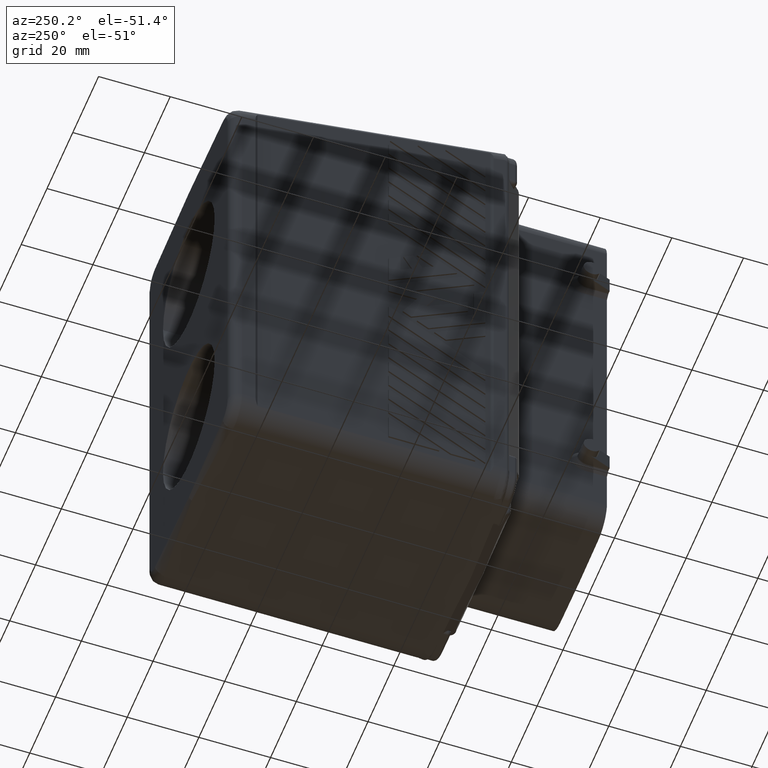
[diagram: clean part render]
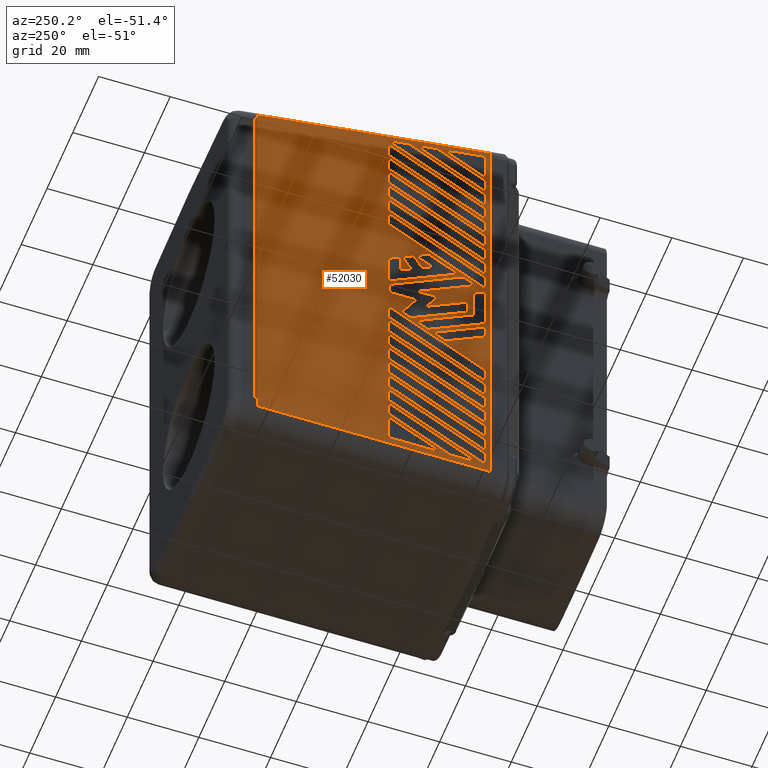
[diagram: same view with one face highlighted and labeled with its STEP entity id]
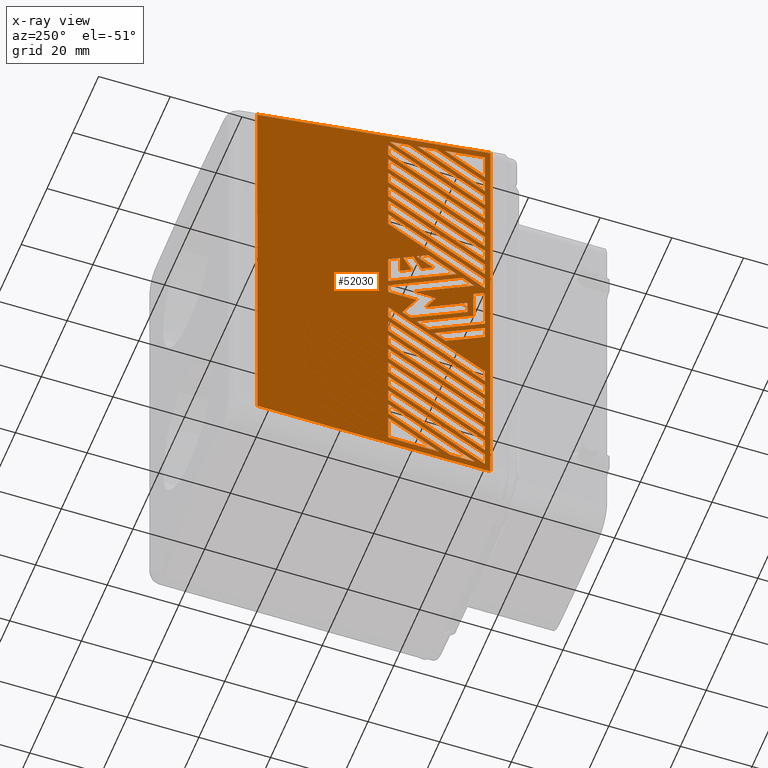
[diagram: x-ray of the same camera — body ghosted, the highlighted face saturated]
A machine part, auxiliary view. The second image highlights one B-rep face of the part: STEP entity #52030.
The next image is the same camera in x-ray: the body ghosted, the highlighted face saturated — about 0% of this face is hidden behind the body in this view.
In plain terms, the highlighted planar face has unit normal (-1, 0, 0).
Its self-contained STEP definition (entity closure, byte-faithful):
#100=CARTESIAN_POINT('',(14.1173127042266,57.7732326809806,
-56.8577996494301));
#110=VERTEX_POINT('',#100);
#280=CARTESIAN_POINT('',(14.1173127042267,57.7732326809806,
-52.908723808173));
#290=VERTEX_POINT('',#280);
#320=CARTESIAN_POINT('',(14.117312704229,57.7732326809805,0.));
#330=DIRECTION('',(4.22079630078353E-14,-2.14213244519121E-15,1.));
#340=VECTOR('',#330,1.);
#350=LINE('',#320,#340);
#360=EDGE_CURVE('',#110,#290,#350,.T.);
#1700=CARTESIAN_POINT('',(14.1173127042315,57.7732326809804,
60.4660871319278));
#1710=VERTEX_POINT('',#1700);
#1880=CARTESIAN_POINT('',(14.1173127042314,68.890920464603,
58.5057388125822));
#1890=VERTEX_POINT('',#1880);
#1920=CARTESIAN_POINT('',(14.117312704232,0.0868240888334704,
70.6377573868961));
#1930=DIRECTION('',(-7.32747196252603E-15,0.984807753012207,
-0.173648177666935));
#1940=VECTOR('',#1930,1.);
#1950=LINE('',#1920,#1940);
#1960=EDGE_CURVE('',#1710,#1890,#1950,.T.);
#2100=CARTESIAN_POINT('',(14.1173127042292,60.8461850785397,
5.24976613991842));
#2110=VERTEX_POINT('',#2100);
#2280=CARTESIAN_POINT('',(14.1173127042293,64.0861850785397,
7.12038101209279));
#2290=VERTEX_POINT('',#2280);
#2320=CARTESIAN_POINT('',(14.1173127042277,0.,-29.8797951943379));
#2330=DIRECTION('',(2.1094237467878E-14,0.86602540378444,
0.499999999999997));
#2340=VECTOR('',#2330,1.);
#2350=LINE('',#2320,#2340);
#2360=EDGE_CURVE('',#2110,#2290,#2350,.T.);
#3650=CARTESIAN_POINT('',(14.1173127042314,56.2866080000187,
63.0044849627656));
#3660=VERTEX_POINT('',#3650);
#3690=CARTESIAN_POINT('',(14.1173127042314,9.92637083796305,
71.1790456064792));
#3700=DIRECTION('',(0.,0.984807753012208,-0.173648177666931));
#3710=VECTOR('',#3700,1.);
#3720=LINE('',#3690,#3710);
#3730=CARTESIAN_POINT('',(14.1173127042314,121.261829476368,
51.5476003389771));
#3740=VERTEX_POINT('',#3730);
#3750=EDGE_CURVE('',#3660,#3740,#3720,.T.);
#5400=CARTESIAN_POINT('',(14.1173127042265,57.7732326809806,
-58.7284145216045));
#5410=VERTEX_POINT('',#5400);
#5580=CARTESIAN_POINT('',(14.1173127042271,84.7732326809809,
-43.1399572534843));
#5590=VERTEX_POINT('',#5580);
#5620=CARTESIAN_POINT('',(14.1173127042251,0.,-92.0838059619238));
#5630=DIRECTION('',(2.1094237467878E-14,0.866025403784437,
0.500000000000003));
#5640=VECTOR('',#5630,1.);
#5650=LINE('',#5620,#5640);
#5660=EDGE_CURVE('',#5410,#5590,#5650,.T.);
#5820=CARTESIAN_POINT('',(14.1173127042313,84.3343764378816,
55.7826408491097));
#5830=VERTEX_POINT('',#5820);
#5980=CARTESIAN_POINT('',(14.1173127042307,57.7732326809807,
40.4475573510787));
#5990=VERTEX_POINT('',#5980);
#6020=CARTESIAN_POINT('',(14.1173127042293,0.,7.09216591075971));
#6030=DIRECTION('',(-2.1094237467878E-14,-0.866025403784439,
-0.499999999999999));
#6040=VECTOR('',#6030,1.);
#6050=LINE('',#6020,#6040);
#6060=EDGE_CURVE('',#5830,#5990,#6050,.T.);
#6200=CARTESIAN_POINT('',(14.1173127042308,84.7732326809809,
42.5260183201615));
#6210=VERTEX_POINT('',#6200);
#6380=CARTESIAN_POINT('',(14.1173127042306,84.7732326809808,
38.5769424789044));
#6390=VERTEX_POINT('',#6380);
#6420=CARTESIAN_POINT('',(14.117312704229,84.7732326809807,0.));
#6430=DIRECTION('',(-4.22079630078353E-14,-4.49714925095434E-15,-1.));
#6440=VECTOR('',#6430,1.);
#6450=LINE('',#6420,#6440);
#6460=EDGE_CURVE('',#6210,#6390,#6450,.T.);
#6600=CARTESIAN_POINT('',(14.1173127042301,57.7732326809805,
26.9375610520413));
#6610=VERTEX_POINT('',#6600);
#6730=CARTESIAN_POINT('',(14.1173127042287,0.,-6.41783038827796));
#6740=DIRECTION('',(2.1094237467878E-14,0.866025403784437,
0.500000000000003));
#6750=VECTOR('',#6740,1.);
#6760=LINE('',#6730,#6750);
#6770=EDGE_CURVE('',#6610,#6210,#6760,.T.);
#6910=CARTESIAN_POINT('',(14.1173127042299,57.7732326809805,
22.9884852107843));
#6920=VERTEX_POINT('',#6910);
#7040=CARTESIAN_POINT('',(14.117312704229,57.7732326809805,0.));
#7050=DIRECTION('',(4.22079630078353E-14,-2.14213244519121E-15,1.));
#7060=VECTOR('',#7050,1.);
#7070=LINE('',#7040,#7060);
#7080=EDGE_CURVE('',#6920,#6610,#7070,.T.);
#7220=CARTESIAN_POINT('',(14.1173127042266,84.773232680981,
-54.7793386803471));
#7230=VERTEX_POINT('',#7220);
#7400=CARTESIAN_POINT('',(14.1173127042265,84.773232680981,
-58.7284145216042));
#7410=VERTEX_POINT('',#7400);
#7440=CARTESIAN_POINT('',(14.117312704229,84.773232680981,0.));
#7450=DIRECTION('',(-4.22079630078353E-14,0.,-1.));
#7460=VECTOR('',#7450,1.);
#7470=LINE('',#7440,#7460);
#7480=EDGE_CURVE('',#7230,#7410,#7470,.T.);
#7620=CARTESIAN_POINT('',(14.1173127042293,65.7061850785394,
8.05568844817983));
#7630=VERTEX_POINT('',#7620);
#7800=CARTESIAN_POINT('',(14.1173127042295,73.6261850785396,
12.6283025801618));
#7810=VERTEX_POINT('',#7800);
#7840=CARTESIAN_POINT('',(14.1173127042277,0.,-29.8797951943381));
#7850=DIRECTION('',(2.1094237467878E-14,0.866025403784439,
0.499999999999999));
#7860=VECTOR('',#7850,1.);
#7870=LINE('',#7840,#7860);
#7880=EDGE_CURVE('',#7630,#7810,#7870,.T.);
#9370=CARTESIAN_POINT('',(14.1173127042288,84.7861850785395,
-2.96015468795786));
#9380=VERTEX_POINT('',#9370);
#9500=CARTESIAN_POINT('',(14.1173127042309,0.,45.9911720906965));
#9510=DIRECTION('',(2.1094237467878E-14,-0.866025403784447,
0.499999999999986));
#9520=VECTOR('',#9510,1.);
#9530=LINE('',#9500,#9520);
#9540=EDGE_CURVE('',#9380,#7630,#9530,.T.);
#9680=CARTESIAN_POINT('',(14.1173127042293,81.5461850785397,
8.05568844817922));
#9690=VERTEX_POINT('',#9680);
#9860=CARTESIAN_POINT('',(14.1173127042292,84.7861850785394,
6.1850735760047));
#9870=VERTEX_POINT('',#9860);
#9900=CARTESIAN_POINT('',(14.1173127042313,0.,55.1364003546681));
#9910=DIRECTION('',(-2.1094237467878E-14,0.866025403784407,
-0.500000000000055));
#9920=VECTOR('',#9910,1.);
#9930=LINE('',#9900,#9920);
#9940=EDGE_CURVE('',#9690,#9870,#9930,.T.);
#10080=CARTESIAN_POINT('',(14.1173127042286,61.0261850785397,
-7.53276881994002));
#10090=VERTEX_POINT('',#10080);
#10260=CARTESIAN_POINT('',(14.1173127042283,76.8661850785397,
-16.6779970839038));
#10270=VERTEX_POINT('',#10260);
#10300=CARTESIAN_POINT('',(14.1173127042301,0.,27.7007155627714));
#10310=DIRECTION('',(-2.1094237467878E-14,0.866025403784435,
-0.500000000000006));
#10320=VECTOR('',#10310,1.);
#10330=LINE('',#10300,#10320);
#10340=EDGE_CURVE('',#10090,#10270,#10330,.T.);
#10520=CARTESIAN_POINT('',(14.117312704229,84.7861850785394,0.));
#10530=DIRECTION('',(-4.22079630078353E-14,3.88578058618805E-15,-1.));
#10540=VECTOR('',#10530,1.);
#10550=LINE('',#10520,#10540);
#10560=EDGE_CURVE('',#9870,#9380,#10550,.T.);
#10700=CARTESIAN_POINT('',(14.1173127042288,71.2861850785397,
-4.31115431786188));
#10710=VERTEX_POINT('',#10700);
#10790=CARTESIAN_POINT('',(14.1173127042288,77.4061850785399,
-4.31115431786187));
#10800=VERTEX_POINT('',#10790);
#10830=CARTESIAN_POINT('',(14.1173127042288,0.,-4.31115431786213));
#10840=DIRECTION('',(1.49883571991992E-28,1.,3.5527136788005E-15));
#10850=VECTOR('',#10840,1.);
#10860=LINE('',#10830,#10850);
#10870=EDGE_CURVE('',#10710,#10800,#10860,.T.);
#11010=CARTESIAN_POINT('',(14.1173127042293,80.6091462326702,
8.59668807808321));
#11020=VERTEX_POINT('',#11010);
#11190=CARTESIAN_POINT('',(14.1173127042292,78.2691462326702,
4.54368918837233));
#11200=VERTEX_POINT('',#11190);
#11230=CARTESIAN_POINT('',(14.117312704229,75.6458460566494,0.));
#11240=DIRECTION('',(-3.65540930857833E-14,-0.500000000000012,
-0.866025403784432));
#11250=VECTOR('',#11240,1.);
#11260=LINE('',#11230,#11250);
#11270=EDGE_CURVE('',#11020,#11200,#11260,.T.);
#11410=CARTESIAN_POINT('',(14.1173127042286,74.3461850785398,
-9.61122978902285));
#11420=VERTEX_POINT('',#11410);
#11470=CARTESIAN_POINT('',(14.117312704229,68.7971389726041,0.));
#11480=DIRECTION('',(3.65263375101677E-14,-0.500000000000001,
0.866025403784438));
#11490=VECTOR('',#11480,1.);
#11500=LINE('',#11470,#11490);
#11510=EDGE_CURVE('',#11420,#10710,#11500,.T.);
#11650=CARTESIAN_POINT('',(14.1173127042284,80.8421073868013,
-14.3824972689519));
#11660=VERTEX_POINT('',#11650);
#11740=CARTESIAN_POINT('',(14.1173127042283,78.4861850785398,
-15.7426896478165));
#11750=VERTEX_POINT('',#11740);
#11780=CARTESIAN_POINT('',(14.1173127042264,0.,-61.0567097305789));
#11790=DIRECTION('',(-2.1094237467878E-14,-0.866025403784436,
-0.500000000000005));
#11800=VECTOR('',#11790,1.);
#11810=LINE('',#11780,#11800);
#11820=EDGE_CURVE('',#11660,#11750,#11810,.T.);
#11980=CARTESIAN_POINT('',(14.1173127042287,62.6461850785396,
-6.59746138385298));
#11990=VERTEX_POINT('',#11980);
#12020=CARTESIAN_POINT('',(14.1173127042302,0.,29.5713304349441));
#12030=DIRECTION('',(2.1094237467878E-14,-0.866025403784444,
0.499999999999991));
#12040=VECTOR('',#12030,1.);
#12050=LINE('',#12020,#12040);
#12060=EDGE_CURVE('',#11750,#11990,#12050,.T.);
#12620=CARTESIAN_POINT('',(14.1173127042288,62.6461850785397,
-2.85623163950416));
#12630=VERTEX_POINT('',#12620);
#12660=CARTESIAN_POINT('',(14.117312704229,62.6461850785398,0.));
#12670=DIRECTION('',(4.22079630078353E-14,2.86992651865603E-14,1.));
#12680=VECTOR('',#12670,1.);
#12690=LINE('',#12660,#12680);
#12700=EDGE_CURVE('',#11990,#12630,#12690,.T.);
#13240=CARTESIAN_POINT('',(14.1173127042308,84.7732326809808,
44.3966331923358));
#13250=VERTEX_POINT('',#13240);
#13420=CARTESIAN_POINT('',(14.1173127042302,57.7732326809805,
28.8081759242156));
#13430=VERTEX_POINT('',#13420);
#13460=CARTESIAN_POINT('',(14.1173127042288,0.,-4.54721551610356));
#13470=DIRECTION('',(-2.1094237467878E-14,-0.866025403784437,
-0.500000000000003));
#13480=VECTOR('',#13470,1.);
#13490=LINE('',#13460,#13480);
#13500=EDGE_CURVE('',#13250,#13430,#13490,.T.);
#15170=CARTESIAN_POINT('',(14.1173127042294,57.7732326809805,
11.3491037839214));
#15180=VERTEX_POINT('',#15170);
#15350=CARTESIAN_POINT('',(14.1173127042296,57.7732326809805,
15.2981796251784));
#15360=VERTEX_POINT('',#15350);
#15390=CARTESIAN_POINT('',(14.117312704229,57.7732326809805,0.));
#15400=DIRECTION('',(4.22079630078353E-14,-2.14213244519121E-15,1.));
#15410=VECTOR('',#15400,1.);
#15420=LINE('',#15390,#15410);
#15430=EDGE_CURVE('',#15180,#15360,#15420,.T.);
#15660=CARTESIAN_POINT('',(14.1173127042261,67.4202199790885,
-68.7471810762928));
#15670=VERTEX_POINT('',#15660);
#15700=CARTESIAN_POINT('',(14.1173127042244,0.,-107.672263230044));
#15710=DIRECTION('',(-2.1094237467878E-14,-0.866025403784437,
-0.500000000000002));
#15720=VECTOR('',#15710,1.);
#15730=LINE('',#15700,#15720);
#15740=EDGE_CURVE('',#7410,#15670,#15730,.T.);
#15970=CARTESIAN_POINT('',(14.1173127042303,57.7732326809805,
32.7572517654727));
#15980=VERTEX_POINT('',#15970);
#16010=CARTESIAN_POINT('',(14.117312704229,57.7732326809805,0.));
#16020=DIRECTION('',(4.22079630078353E-14,-2.14213244519121E-15,1.));
#16030=VECTOR('',#16020,1.);
#16040=LINE('',#16010,#16030);
#16050=EDGE_CURVE('',#13430,#15980,#16040,.T.);
#16870=CARTESIAN_POINT('',(14.1173127042262,57.7732326809807,
-64.5481052350358));
#16880=VERTEX_POINT('',#16870);
#17050=CARTESIAN_POINT('',(14.1173127042269,84.7732326809811,
-48.9596479669156));
#17060=VERTEX_POINT('',#17050);
#17090=CARTESIAN_POINT('',(14.1173127042248,0.,-97.9034966753551));
#17100=DIRECTION('',(2.1094237467878E-14,0.866025403784438,
0.500000000000002));
#17110=VECTOR('',#17100,1.);
#17120=LINE('',#17090,#17110);
#17130=EDGE_CURVE('',#16880,#17060,#17120,.T.);
#17270=CARTESIAN_POINT('',(14.1173127042297,57.7732326809805,
17.1687944973528));
#17280=VERTEX_POINT('',#17270);
#17450=CARTESIAN_POINT('',(14.1173127042299,57.7732326809804,
21.1178703386099));
#17460=VERTEX_POINT('',#17450);
#17490=CARTESIAN_POINT('',(14.117312704229,57.7732326809805,0.));
#17500=DIRECTION('',(4.22079630078353E-14,-2.14213244519121E-15,1.));
#17510=VECTOR('',#17500,1.);
#17520=LINE('',#17490,#17510);
#17530=EDGE_CURVE('',#17280,#17460,#17520,.T.);
#17930=CARTESIAN_POINT('',(14.1173127042261,60.5802199790886,
-68.7471810762928));
#17940=VERTEX_POINT('',#17930);
#17970=CARTESIAN_POINT('',(14.1173127042261,0.,-68.7471810762928));
#17980=DIRECTION('',(-4.97968446420764E-30,-1.,-1.17961196366423E-16));
#17990=VECTOR('',#17980,1.);
#18000=LINE('',#17970,#17990);
#18010=EDGE_CURVE('',#15670,#17940,#18000,.T.);
#18150=CARTESIAN_POINT('',(14.1173127042304,57.7732326809805,
34.6278666376472));
#18160=VERTEX_POINT('',#18150);
#18330=CARTESIAN_POINT('',(14.1173127042306,57.7732326809805,
38.5769424789042));
#18340=VERTEX_POINT('',#18330);
#18370=CARTESIAN_POINT('',(14.117312704229,57.7732326809806,0.));
#18380=DIRECTION('',(4.22079630078353E-14,-2.14213244519121E-15,1.));
#18390=VECTOR('',#18380,1.);
#18400=LINE('',#18370,#18390);
#18410=EDGE_CURVE('',#18160,#18340,#18400,.T.);
#26110=CARTESIAN_POINT('',(14.1173127042267,84.773232680981,
-52.9087238081727));
#26120=VERTEX_POINT('',#26110);
#26150=CARTESIAN_POINT('',(14.117312704229,84.773232680981,0.));
#26160=DIRECTION('',(-4.22079630078353E-14,0.,-1.));
#26170=VECTOR('',#26160,1.);
#26180=LINE('',#26150,#26170);
#26190=EDGE_CURVE('',#17060,#26120,#26180,.T.);
#31220=CARTESIAN_POINT('',(14.117312704227,84.7732326809809,
-47.0890330947413));
#31230=VERTEX_POINT('',#31220);
#31400=CARTESIAN_POINT('',(14.1173127042263,57.7732326809806,
-62.6774903628615));
#31410=VERTEX_POINT('',#31400);
#31440=CARTESIAN_POINT('',(14.1173127042249,0.,-96.0328818031808));
#31450=DIRECTION('',(-2.1094237467878E-14,-0.866025403784437,
-0.500000000000003));
#31460=VECTOR('',#31450,1.);
#31470=LINE('',#31440,#31460);
#31480=EDGE_CURVE('',#31230,#31410,#31470,.T.);
#35550=CARTESIAN_POINT('',(14.1173127042305,84.7732326809808,
36.7063276067301));
#35560=VERTEX_POINT('',#35550);
#35730=CARTESIAN_POINT('',(14.1173127042303,84.7732326809808,
32.757251765473));
#35740=VERTEX_POINT('',#35730);
#35770=CARTESIAN_POINT('',(14.117312704229,84.7732326809808,0.));
#35780=DIRECTION('',(-4.22079630078353E-14,0.,-1.));
#35790=VECTOR('',#35780,1.);
#35800=LINE('',#35770,#35790);
#35810=EDGE_CURVE('',#35560,#35740,#35800,.T.);
#35970=CARTESIAN_POINT('',(14.117312704226,121.261829476397,
-71.0025593763446));
#35980=VERTEX_POINT('',#35970);
#36010=CARTESIAN_POINT('',(14.117312704226,-1.49373060649877E-13,
-71.0025593763446));
#36020=DIRECTION('',(1.24492111605191E-30,1.,-6.12323399573677E-17));
#36030=VECTOR('',#36020,1.);
#36040=LINE('',#36010,#36030);
#36050=CARTESIAN_POINT('',(14.117312704226,56.2866079999979,
-71.0025593763446));
#36060=VERTEX_POINT('',#36050);
#36070=EDGE_CURVE('',#36060,#35980,#36040,.T.);
#36760=CARTESIAN_POINT('',(14.1173127042282,84.7732326809807,
-17.9905795275844));
#36770=VERTEX_POINT('',#36760);
#36940=CARTESIAN_POINT('',(14.1173127042275,57.7732326809806,
-33.5790367957043));
#36950=VERTEX_POINT('',#36940);
#36980=CARTESIAN_POINT('',(14.1173127042261,0.,-66.9344282360235));
#36990=DIRECTION('',(-2.1094237467878E-14,-0.866025403784438,
-0.500000000000001));
#37000=VECTOR('',#36990,1.);
#37010=LINE('',#36980,#37000);
#37020=EDGE_CURVE('',#36770,#36950,#37010,.T.);
#37600=CARTESIAN_POINT('',(14.1173127042285,0.,-10.3669062295349));
#37610=DIRECTION('',(-2.1094237467878E-14,-0.866025403784437,
-0.500000000000003));
#37620=VECTOR('',#37610,1.);
#37630=LINE('',#37600,#37620);
#37640=EDGE_CURVE('',#6390,#6920,#37630,.T.);
#37730=CARTESIAN_POINT('',(14.1173127042314,79.0946324469476,
56.7065490867165));
#37740=VERTEX_POINT('',#37730);
#37860=CARTESIAN_POINT('',(14.1173127042319,0.,70.6530668163329));
#37870=DIRECTION('',(-7.32747196252603E-15,0.984807753012207,
-0.173648177666935));
#37880=VECTOR('',#37870,1.);
#37890=LINE('',#37860,#37880);
#37900=EDGE_CURVE('',#37740,#5830,#37890,.T.);
#38130=CARTESIAN_POINT('',(14.1173127042308,57.7732326809805,
44.3966331923357));
#38140=VERTEX_POINT('',#38130);
#38170=CARTESIAN_POINT('',(14.117312704229,57.7732326809806,0.));
#38180=DIRECTION('',(4.22079630078353E-14,-2.14213244519121E-15,1.));
#38190=VECTOR('',#38180,1.);
#38200=LINE('',#38170,#38190);
#38210=EDGE_CURVE('',#5990,#38140,#38200,.T.);
#38610=CARTESIAN_POINT('',(14.1173127042277,57.7732326809806,
-29.6299609544473));
#38620=VERTEX_POINT('',#38610);
#38650=CARTESIAN_POINT('',(14.117312704229,57.7732326809805,0.));
#38660=DIRECTION('',(4.22079630078353E-14,-2.14213244519121E-15,1.));
#38670=VECTOR('',#38660,1.);
#38680=LINE('',#38650,#38670);
#38690=EDGE_CURVE('',#36950,#38620,#38680,.T.);
#39040=CARTESIAN_POINT('',(14.117312704229,57.7732326809805,0.));
#39050=DIRECTION('',(4.22079630078353E-14,-2.14213244519121E-15,1.));
#39060=VECTOR('',#39050,1.);
#39070=LINE('',#39040,#39060);
#39080=EDGE_CURVE('',#31410,#5410,#39070,.T.);
#39220=CARTESIAN_POINT('',(14.1173127042284,84.7732326809807,
-14.0415036863273));
#39230=VERTEX_POINT('',#39220);
#39350=CARTESIAN_POINT('',(14.117312704229,84.7732326809807,0.));
#39360=DIRECTION('',(-4.22079630078353E-14,-4.49714925095434E-15,-1.));
#39370=VECTOR('',#39360,1.);
#39380=LINE('',#39350,#39370);
#39390=EDGE_CURVE('',#39230,#36770,#39380,.T.);
#39570=CARTESIAN_POINT('',(14.1173127042263,0.,-62.9853523947663));
#39580=DIRECTION('',(2.1094237467878E-14,0.866025403784439,0.5));
#39590=VECTOR('',#39580,1.);
#39600=LINE('',#39570,#39590);
#39610=EDGE_CURVE('',#38620,#39230,#39600,.T.);
#39860=CARTESIAN_POINT('',(14.1173127042294,0.,11.0412417520164));
#39870=DIRECTION('',(2.1094237467878E-14,0.866025403784437,
0.500000000000003));
#39880=VECTOR('',#39870,1.);
#39890=LINE('',#39860,#39880);
#39900=EDGE_CURVE('',#38140,#37740,#39890,.T.);
#40040=CARTESIAN_POINT('',(14.1173127042264,84.773232680981,
-60.5990293937786));
#40050=VERTEX_POINT('',#40040);
#40220=CARTESIAN_POINT('',(14.1173127042261,84.773232680981,
-68.7471810762928));
#40230=VERTEX_POINT('',#40220);
#40260=CARTESIAN_POINT('',(14.117312704229,84.773232680981,0.));
#40270=DIRECTION('',(-4.22079630078353E-14,0.,-1.));
#40280=VECTOR('',#40270,1.);
#40290=LINE('',#40260,#40280);
#40300=EDGE_CURVE('',#40050,#40230,#40290,.T.);
#42190=CARTESIAN_POINT('',(14.1173127042279,84.7732326809806,
-25.68088511319));
#42200=VERTEX_POINT('',#42190);
#42280=CARTESIAN_POINT('',(14.1173127042277,84.7732326809806,
-29.6299609544471));
#42290=VERTEX_POINT('',#42280);
#42320=CARTESIAN_POINT('',(14.117312704229,84.7732326809807,0.));
#42330=DIRECTION('',(-4.22079630078353E-14,-4.49714925095434E-15,-1.));
#42340=VECTOR('',#42330,1.);
#42350=LINE('',#42320,#42340);
#42360=EDGE_CURVE('',#42200,#42290,#42350,.T.);
#42590=CARTESIAN_POINT('',(14.117312704231,84.7732326809809,
48.3457090335929));
#42600=VERTEX_POINT('',#42590);
#42630=CARTESIAN_POINT('',(14.1173127042289,0.,-0.598139674846524));
#42640=DIRECTION('',(2.1094237467878E-14,0.866025403784437,
0.500000000000003));
#42650=VECTOR('',#42640,1.);
#42660=LINE('',#42630,#42650);
#42670=EDGE_CURVE('',#15980,#42600,#42660,.T.);
#46430=CARTESIAN_POINT('',(14.1173127042288,57.8773798754231,
-3.99903720678144));
#46440=DIRECTION('',(-1.,0.,4.22079630078353E-14));
#46450=DIRECTION('',(4.22079630078353E-14,-8.32667268468867E-17,1.));
#46460=AXIS2_PLACEMENT_3D('',#46430,#46440,#46450);
#46470=PLANE('',#46460);
#46480=CARTESIAN_POINT('',(14.117312704229,84.7732326809811,0.));
#46490=DIRECTION('',(-4.22079630078353E-14,-4.49714925095434E-15,-1.));
#46500=VECTOR('',#46490,1.);
#46510=LINE('',#46480,#46500);
#46520=CARTESIAN_POINT('',(14.1173127042276,84.7732326809806,
-31.5005758266216));
#46530=VERTEX_POINT('',#46520);
#46540=CARTESIAN_POINT('',(14.1173127042275,84.7732326809809,
-35.4496516678785));
#46550=VERTEX_POINT('',#46540);
#46560=EDGE_CURVE('',#46530,#46550,#46510,.T.);
#46570=ORIENTED_EDGE('',*,*,#46560,.F.);
#46580=CARTESIAN_POINT('',(14.1173127042254,0.,-84.3935003763179));
#46590=DIRECTION('',(-2.1094237467878E-14,-0.866025403784437,
-0.500000000000003));
#46600=VECTOR('',#46590,1.);
#46610=LINE('',#46580,#46600);
#46620=CARTESIAN_POINT('',(14.1173127042268,57.7732326809806,
-51.0381089359986));
#46630=VERTEX_POINT('',#46620);
#46640=EDGE_CURVE('',#46550,#46630,#46610,.T.);
#46650=ORIENTED_EDGE('',*,*,#46640,.F.);
#46660=CARTESIAN_POINT('',(14.117312704229,57.7732326809805,0.));
#46670=DIRECTION('',(4.22079630078353E-14,-2.14213244519121E-15,1.));
#46680=VECTOR('',#46670,1.);
#46690=LINE('',#46660,#46680);
#46700=CARTESIAN_POINT('',(14.117312704227,57.7732326809806,
-47.0890330947416));
#46710=VERTEX_POINT('',#46700);
#46720=EDGE_CURVE('',#46630,#46710,#46690,.T.);
#46730=ORIENTED_EDGE('',*,*,#46720,.F.);
#46740=CARTESIAN_POINT('',(14.1173127042256,0.,-80.4444245350609));
#46750=DIRECTION('',(2.1094237467878E-14,0.866025403784437,
0.500000000000003));
#46760=VECTOR('',#46750,1.);
#46770=LINE('',#46740,#46760);
#46780=EDGE_CURVE('',#46710,#46530,#46770,.T.);
#46790=ORIENTED_EDGE('',*,*,#46780,.F.);
#46800=EDGE_LOOP('',(#46790,#46730,#46650,#46570));
#46810=FACE_BOUND('',#46800,.T.);
#46820=ORIENTED_EDGE('',*,*,#39900,.F.);
#46830=ORIENTED_EDGE('',*,*,#37900,.F.);
#46840=ORIENTED_EDGE('',*,*,#6060,.F.);
#46850=ORIENTED_EDGE('',*,*,#38210,.F.);
#46860=EDGE_LOOP('',(#46850,#46840,#46830,#46820));
#46870=FACE_BOUND('',#46860,.T.);
#46880=ORIENTED_EDGE('',*,*,#35810,.F.);
#46890=CARTESIAN_POINT('',(14.1173127042283,0.,-16.1865969429664));
#46900=DIRECTION('',(-2.1094237467878E-14,-0.866025403784437,
-0.500000000000003));
#46910=VECTOR('',#46900,1.);
#46920=LINE('',#46890,#46910);
#46930=EDGE_CURVE('',#35740,#17280,#46920,.T.);
#46940=ORIENTED_EDGE('',*,*,#46930,.F.);
#46950=ORIENTED_EDGE('',*,*,#17530,.F.);
#46960=CARTESIAN_POINT('',(14.1173127042284,0.,-12.2375211017092));
#46970=DIRECTION('',(2.1094237467878E-14,0.866025403784438,
0.500000000000002));
#46980=VECTOR('',#46970,1.);
#46990=LINE('',#46960,#46980);
#47000=EDGE_CURVE('',#17460,#35560,#46990,.T.);
#47010=ORIENTED_EDGE('',*,*,#47000,.F.);
#47020=EDGE_LOOP('',(#47010,#46950,#46940,#46880));
#47030=FACE_BOUND('',#47020,.T.);
#47040=ORIENTED_EDGE('',*,*,#16050,.F.);
#47050=ORIENTED_EDGE('',*,*,#42670,.F.);
#47060=CARTESIAN_POINT('',(14.117312704229,84.7732326809806,0.));
#47070=DIRECTION('',(-4.22079630078353E-14,-4.49714925095434E-15,-1.));
#47080=VECTOR('',#47070,1.);
#47090=LINE('',#47060,#47080);
#47100=EDGE_CURVE('',#42600,#13250,#47090,.T.);
#47110=ORIENTED_EDGE('',*,*,#47100,.F.);
#47120=ORIENTED_EDGE('',*,*,#13500,.F.);
#47130=EDGE_LOOP('',(#47120,#47110,#47050,#47040));
#47140=FACE_BOUND('',#47130,.T.);
#47150=CARTESIAN_POINT('',(14.1173127042319,0.,70.6530668163329));
#47160=DIRECTION('',(-7.32747196252603E-15,0.984807753012207,
-0.173648177666935));
#47170=VECTOR('',#47160,1.);
#47180=LINE('',#47150,#47170);
#47190=CARTESIAN_POINT('',(14.1173127042314,71.3729044603085,
58.0680980684527));
#47200=VERTEX_POINT('',#47190);
#47210=CARTESIAN_POINT('',(14.1173127042314,76.6126484512424,
57.1441898308459));
#47220=VERTEX_POINT('',#47210);
#47230=EDGE_CURVE('',#47200,#47220,#47180,.T.);
#47240=ORIENTED_EDGE('',*,*,#47230,.F.);
#47250=CARTESIAN_POINT('',(14.1173127042295,0.,12.9118566241911));
#47260=DIRECTION('',(-2.1094237467878E-14,-0.866025403784439,
-0.499999999999999));
#47270=VECTOR('',#47260,1.);
#47280=LINE('',#47250,#47270);
#47290=CARTESIAN_POINT('',(14.1173127042309,57.7732326809805,
46.26724806451));
#47300=VERTEX_POINT('',#47290);
#47310=EDGE_CURVE('',#47220,#47300,#47280,.T.);
#47320=ORIENTED_EDGE('',*,*,#47310,.F.);
#47330=CARTESIAN_POINT('',(14.117312704229,57.7732326809806,0.));
#47340=DIRECTION('',(4.22079630078353E-14,-2.14213244519121E-15,1.));
#47350=VECTOR('',#47340,1.);
#47360=LINE('',#47330,#47350);
#47370=CARTESIAN_POINT('',(14.1173127042311,57.7732326809805,
50.2163239057671));
#47380=VERTEX_POINT('',#47370);
#47390=EDGE_CURVE('',#47300,#47380,#47360,.T.);
#47400=ORIENTED_EDGE('',*,*,#47390,.F.);
#47410=CARTESIAN_POINT('',(14.1173127042297,0.,16.8609324654479));
#47420=DIRECTION('',(2.1094237467878E-14,0.866025403784438,
0.500000000000002));
#47430=VECTOR('',#47420,1.);
#47440=LINE('',#47410,#47430);
#47450=EDGE_CURVE('',#47380,#47200,#47440,.T.);
#47460=ORIENTED_EDGE('',*,*,#47450,.F.);
#47470=EDGE_LOOP('',(#47460,#47400,#47320,#47240));
#47480=FACE_BOUND('',#47470,.T.);
#47490=ORIENTED_EDGE('',*,*,#39080,.F.);
#47500=ORIENTED_EDGE('',*,*,#5660,.F.);
#47510=CARTESIAN_POINT('',(14.117312704229,84.7732326809809,0.));
#47520=DIRECTION('',(-4.22079630078353E-14,0.,-1.));
#47530=VECTOR('',#47520,1.);
#47540=LINE('',#47510,#47530);
#47550=EDGE_CURVE('',#5590,#31230,#47540,.T.);
#47560=ORIENTED_EDGE('',*,*,#47550,.F.);
#47570=ORIENTED_EDGE('',*,*,#31480,.F.);
#47580=EDGE_LOOP('',(#47570,#47560,#47500,#47490));
#47590=FACE_BOUND('',#47580,.T.);
#47600=ORIENTED_EDGE('',*,*,#39390,.F.);
#47610=ORIENTED_EDGE('',*,*,#37020,.F.);
#47620=ORIENTED_EDGE('',*,*,#38690,.F.);
#47630=ORIENTED_EDGE('',*,*,#39610,.F.);
#47640=EDGE_LOOP('',(#47630,#47620,#47610,#47600));
#47650=FACE_BOUND('',#47640,.T.);
#47660=ORIENTED_EDGE('',*,*,#6460,.F.);
#47670=ORIENTED_EDGE('',*,*,#37640,.F.);
#47680=ORIENTED_EDGE('',*,*,#7080,.F.);
#47690=ORIENTED_EDGE('',*,*,#6770,.F.);
#47700=EDGE_LOOP('',(#47690,#47680,#47670,#47660));
#47710=FACE_BOUND('',#47700,.T.);
#47720=ORIENTED_EDGE('',*,*,#1960,.F.);
#47730=CARTESIAN_POINT('',(14.1173127042298,0.,18.7315473376227));
#47740=DIRECTION('',(-2.1094237467878E-14,-0.866025403784439,
-0.499999999999999));
#47750=VECTOR('',#47740,1.);
#47760=LINE('',#47730,#47750);
#47770=CARTESIAN_POINT('',(14.1173127042312,57.7732326809804,
52.0869387779415));
#47780=VERTEX_POINT('',#47770);
#47790=EDGE_CURVE('',#1890,#47780,#47760,.T.);
#47800=ORIENTED_EDGE('',*,*,#47790,.F.);
#47810=CARTESIAN_POINT('',(14.117312704229,57.7732326809805,0.));
#47820=DIRECTION('',(4.22079630078353E-14,-2.14213244519121E-15,1.));
#47830=VECTOR('',#47820,1.);
#47840=LINE('',#47810,#47830);
#47850=EDGE_CURVE('',#47780,#1710,#47840,.T.);
#47860=ORIENTED_EDGE('',*,*,#47850,.F.);
#47870=EDGE_LOOP('',(#47860,#47800,#47720));
#47880=FACE_BOUND('',#47870,.T.);
#47890=CARTESIAN_POINT('',(14.1173127042297,0.,18.3476412019001));
#47900=DIRECTION('',(2.1094237467878E-14,-0.866025403784431,
0.500000000000013));
#47910=VECTOR('',#47900,1.);
#47920=LINE('',#47890,#47910);
#47930=CARTESIAN_POINT('',(14.1173127042281,68.7661850785398,
-21.3545342643398));
#47940=VERTEX_POINT('',#47930);
#47950=CARTESIAN_POINT('',(14.1173127042283,57.7861850785394,
-15.0152283086373));
#47960=VERTEX_POINT('',#47950);
#47970=EDGE_CURVE('',#47940,#47960,#47920,.T.);
#47980=ORIENTED_EDGE('',*,*,#47970,.F.);
#47990=CARTESIAN_POINT('',(14.117312704229,57.7861850785396,0.));
#48000=DIRECTION('',(4.22079630078353E-14,1.53210777398272E-14,1.));
#48010=VECTOR('',#48000,1.);
#48020=LINE('',#47990,#48010);
#48030=CARTESIAN_POINT('',(14.1173127042285,57.7861850785395,
-11.2739985642887));
#48040=VERTEX_POINT('',#48030);
#48050=EDGE_CURVE('',#47960,#48040,#48020,.T.);
#48060=ORIENTED_EDGE('',*,*,#48050,.F.);
#48070=CARTESIAN_POINT('',(14.1173127042299,0.,22.088870946248));
#48080=DIRECTION('',(-2.1094237467878E-14,0.866025403784436,
-0.500000000000004));
#48090=VECTOR('',#48080,1.);
#48100=LINE('',#48070,#48090);
#48110=CARTESIAN_POINT('',(14.1173127042281,72.0061850785397,
-19.4839193921654));
#48120=VERTEX_POINT('',#48110);
#48130=EDGE_CURVE('',#48040,#48120,#48100,.T.);
#48140=ORIENTED_EDGE('',*,*,#48130,.F.);
#48150=CARTESIAN_POINT('',(14.1173127042264,0.,-61.0567097305794));
#48160=DIRECTION('',(-2.1094237467878E-14,-0.866025403784433,
-0.50000000000001));
#48170=VECTOR('',#48160,1.);
#48180=LINE('',#48150,#48170);
#48190=EDGE_CURVE('',#48120,#47940,#48180,.T.);
#48200=ORIENTED_EDGE('',*,*,#48190,.F.);
#48210=EDGE_LOOP('',(#48200,#48140,#48060,#47980));
#48220=FACE_BOUND('',#48210,.T.);
#48230=CARTESIAN_POINT('',(14.117312704229,84.7861850785394,0.));
#48240=DIRECTION('',(-4.22079630078353E-14,3.88578058618805E-15,-1.));
#48250=VECTOR('',#48240,1.);
#48260=LINE('',#48230,#48250);
#48270=CARTESIAN_POINT('',(14.1173127042288,84.7861850785395,
-4.83076956013246));
#48280=VERTEX_POINT('',#48270);
#48290=CARTESIAN_POINT('',(14.1173127042286,84.7861850785395,
-7.5511543178618));
#48300=VERTEX_POINT('',#48290);
#48310=EDGE_CURVE('',#48280,#48300,#48260,.T.);
#48320=ORIENTED_EDGE('',*,*,#48310,.F.);
#48330=CARTESIAN_POINT('',(14.1173127042286,0.,-7.55115431786386));
#48340=DIRECTION('',(-1.02236373316643E-27,-1.,-2.42028619368284E-14));
#48350=VECTOR('',#48340,1.);
#48360=LINE('',#48330,#48350);
#48370=CARTESIAN_POINT('',(14.1173127042286,76.8980296950629,
-7.55115431786199));
#48380=VERTEX_POINT('',#48370);
#48390=EDGE_CURVE('',#48300,#48380,#48360,.T.);
#48400=ORIENTED_EDGE('',*,*,#48390,.F.);
#48410=CARTESIAN_POINT('',(14.117312704229,72.5383687169528,0.));
#48420=DIRECTION('',(-3.65540930857833E-14,0.5,-0.866025403784439));
#48430=VECTOR('',#48420,1.);
#48440=LINE('',#48410,#48430);
#48450=EDGE_CURVE('',#48380,#11660,#48440,.T.);
#48460=ORIENTED_EDGE('',*,*,#48450,.F.);
#48470=ORIENTED_EDGE('',*,*,#11820,.F.);
#48480=ORIENTED_EDGE('',*,*,#12060,.F.);
#48490=ORIENTED_EDGE('',*,*,#12700,.F.);
#48500=CARTESIAN_POINT('',(14.1173127042304,0.,33.312560179294));
#48510=DIRECTION('',(-2.1094237467878E-14,0.866025403784438,
-0.500000000000001));
#48520=VECTOR('',#48510,1.);
#48530=LINE('',#48500,#48520);
#48540=EDGE_CURVE('',#12630,#11420,#48530,.T.);
#48550=ORIENTED_EDGE('',*,*,#48540,.F.);
#48560=ORIENTED_EDGE('',*,*,#11510,.F.);
#48570=ORIENTED_EDGE('',*,*,#10870,.F.);
#48580=CARTESIAN_POINT('',(14.1173127042307,0.,40.379327474175));
#48590=DIRECTION('',(2.1094237467878E-14,-0.866025403784439,
0.499999999999999));
#48600=VECTOR('',#48590,1.);
#48610=LINE('',#48580,#48600);
#48620=EDGE_CURVE('',#10800,#2110,#48610,.T.);
#48630=ORIENTED_EDGE('',*,*,#48620,.F.);
#48640=ORIENTED_EDGE('',*,*,#2360,.F.);
#48650=CARTESIAN_POINT('',(14.1173127042308,0.,44.1205572185241));
#48660=DIRECTION('',(-2.1094237467878E-14,0.866025403784437,
-0.500000000000002));
#48670=VECTOR('',#48660,1.);
#48680=LINE('',#48650,#48670);
#48690=EDGE_CURVE('',#2290,#48280,#48680,.T.);
#48700=ORIENTED_EDGE('',*,*,#48690,.F.);
#48710=EDGE_LOOP('',(#48700,#48640,#48630,#48570,#48560,#48550,#48490,
#48480,#48470,#48460,#48400,#48320));
#48720=FACE_BOUND('',#48710,.T.);
#48730=ORIENTED_EDGE('',*,*,#10560,.F.);
#48740=ORIENTED_EDGE('',*,*,#9540,.F.);
#48750=ORIENTED_EDGE('',*,*,#7880,.F.);
#48760=CARTESIAN_POINT('',(14.1173127042313,0.,55.1364003546681));
#48770=DIRECTION('',(-2.1094237467878E-14,0.866025403784407,
-0.500000000000055));
#48780=VECTOR('',#48770,1.);
#48790=LINE('',#48760,#48780);
#48800=CARTESIAN_POINT('',(14.1173127042294,76.8661850785394,
10.7576877079872));
#48810=VERTEX_POINT('',#48800);
#48820=EDGE_CURVE('',#7810,#48810,#48790,.T.);
#48830=ORIENTED_EDGE('',*,*,#48820,.F.);
#48840=CARTESIAN_POINT('',(14.1173127042275,0.,-33.621024938687));
#48850=DIRECTION('',(-2.1094237467878E-14,-0.866025403784439,
-0.499999999999999));
#48860=VECTOR('',#48850,1.);
#48870=LINE('',#48840,#48860);
#48880=CARTESIAN_POINT('',(14.1173127042293,72.1861850785395,
8.05568844817982));
#48890=VERTEX_POINT('',#48880);
#48900=EDGE_CURVE('',#48810,#48890,#48870,.T.);
#48910=ORIENTED_EDGE('',*,*,#48900,.F.);
#48920=CARTESIAN_POINT('',(14.1173127042311,0.,49.7324018350469));
#48930=DIRECTION('',(-2.1094237467878E-14,0.866025403784438,
-0.500000000000001));
#48940=VECTOR('',#48930,1.);
#48950=LINE('',#48920,#48940);
#48960=CARTESIAN_POINT('',(14.1173127042292,75.4632239244087,
6.16368918837235));
#48970=VERTEX_POINT('',#48960);
#48980=EDGE_CURVE('',#48890,#48970,#48950,.T.);
#48990=ORIENTED_EDGE('',*,*,#48980,.F.);
#49000=CARTESIAN_POINT('',(14.117312704229,71.9046163123006,0.));
#49010=DIRECTION('',(3.65263375101677E-14,0.50000000000001,
0.866025403784433));
#49020=VECTOR('',#49010,1.);
#49030=LINE('',#49000,#49020);
#49040=CARTESIAN_POINT('',(14.1173127042294,77.8032239244087,
10.2166880780834));
#49050=VERTEX_POINT('',#49040);
#49060=EDGE_CURVE('',#48970,#49050,#49030,.T.);
#49070=ORIENTED_EDGE('',*,*,#49060,.F.);
#49080=CARTESIAN_POINT('',(14.1173127042313,0.,55.1364003546681));
#49090=DIRECTION('',(-2.1094237467878E-14,0.866025403784407,
-0.500000000000055));
#49100=VECTOR('',#49090,1.);
#49110=LINE('',#49080,#49100);
#49120=EDGE_CURVE('',#49050,#11020,#49110,.T.);
#49130=ORIENTED_EDGE('',*,*,#49120,.F.);
#49140=ORIENTED_EDGE('',*,*,#11270,.F.);
#49150=CARTESIAN_POINT('',(14.1173127042311,0.,49.7324018350469));
#49160=DIRECTION('',(-2.1094237467878E-14,0.866025403784438,
-0.500000000000001));
#49170=VECTOR('',#49160,1.);
#49180=LINE('',#49150,#49170);
#49190=CARTESIAN_POINT('',(14.1173127042291,81.5461850785398,
2.65168992856472));
#49200=VERTEX_POINT('',#49190);
#49210=EDGE_CURVE('',#11200,#49200,#49180,.T.);
#49220=ORIENTED_EDGE('',*,*,#49210,.F.);
#49230=CARTESIAN_POINT('',(14.117312704229,81.5461850785398,0.));
#49240=DIRECTION('',(4.22079630078353E-14,-1.34336985979644E-14,1.));
#49250=VECTOR('',#49240,1.);
#49260=LINE('',#49230,#49250);
#49270=EDGE_CURVE('',#49200,#9690,#49260,.T.);
#49280=ORIENTED_EDGE('',*,*,#49270,.F.);
#49290=ORIENTED_EDGE('',*,*,#9940,.F.);
#49300=EDGE_LOOP('',(#49290,#49280,#49220,#49140,#49130,#49070,#48990,
#48910,#48830,#48750,#48740,#48730));
#49310=FACE_BOUND('',#49300,.T.);
#49320=CARTESIAN_POINT('',(14.117312704229,57.7861850785397,0.));
#49330=DIRECTION('',(4.22079630078353E-14,1.53210777398272E-14,1.));
#49340=VECTOR('',#49330,1.);
#49350=LINE('',#49320,#49340);
#49360=CARTESIAN_POINT('',(14.1173127042286,57.7861850785395,
-9.40338369211456));
#49370=VERTEX_POINT('',#49360);
#49380=CARTESIAN_POINT('',(14.1173127042291,57.7861850785397,
3.48307431619807));
#49390=VERTEX_POINT('',#49380);
#49400=EDGE_CURVE('',#49370,#49390,#49350,.T.);
#49410=ORIENTED_EDGE('',*,*,#49400,.F.);
#49420=CARTESIAN_POINT('',(14.1173127042305,0.,36.84594382674));
#49430=DIRECTION('',(-2.1094237467878E-14,0.866025403784403,
-0.500000000000062));
#49440=VECTOR('',#49430,1.);
#49450=LINE('',#49420,#49440);
#49460=CARTESIAN_POINT('',(14.117312704229,61.0261850785395,
1.61245944402351));
#49470=VERTEX_POINT('',#49460);
#49480=EDGE_CURVE('',#49390,#49470,#49450,.T.);
#49490=ORIENTED_EDGE('',*,*,#49480,.F.);
#49500=CARTESIAN_POINT('',(14.117312704229,61.0261850785395,0.));
#49510=DIRECTION('',(-4.22079630078353E-14,2.80886425230165E-14,-1.));
#49520=VECTOR('',#49510,1.);
#49530=LINE('',#49500,#49520);
#49540=EDGE_CURVE('',#49470,#10090,#49530,.T.);
#49550=ORIENTED_EDGE('',*,*,#49540,.F.);
#49560=ORIENTED_EDGE('',*,*,#10340,.F.);
#49570=CARTESIAN_POINT('',(14.1173127042264,0.,-61.0567097305791));
#49580=DIRECTION('',(-2.1094237467878E-14,-0.866025403784435,
-0.500000000000007));
#49590=VECTOR('',#49580,1.);
#49600=LINE('',#49570,#49590);
#49610=CARTESIAN_POINT('',(14.1173127042282,73.6261850785398,
-18.5486119560782));
#49620=VERTEX_POINT('',#49610);
#49630=EDGE_CURVE('',#10270,#49620,#49600,.T.);
#49640=ORIENTED_EDGE('',*,*,#49630,.F.);
#49650=CARTESIAN_POINT('',(14.11731270423,0.,23.9594858184211));
#49660=DIRECTION('',(2.1094237467878E-14,-0.866025403784443,
0.499999999999992));
#49670=VECTOR('',#49660,1.);
#49680=LINE('',#49650,#49670);
#49690=EDGE_CURVE('',#49620,#49370,#49680,.T.);
#49700=ORIENTED_EDGE('',*,*,#49690,.F.);
#49710=EDGE_LOOP('',(#49700,#49640,#49560,#49550,#49490,#49410));
#49720=FACE_BOUND('',#49710,.T.);
#49730=CARTESIAN_POINT('',(14.117312704228,0.,-22.0062876563978));
#49740=DIRECTION('',(-2.1094237467878E-14,-0.866025403784437,
-0.500000000000002));
#49750=VECTOR('',#49740,1.);
#49760=LINE('',#49730,#49750);
#49770=CARTESIAN_POINT('',(14.1173127042301,84.7732326809808,
26.9375610520415));
#49780=VERTEX_POINT('',#49770);
#49790=EDGE_CURVE('',#49780,#15180,#49760,.T.);
#49800=ORIENTED_EDGE('',*,*,#49790,.F.);
#49810=ORIENTED_EDGE('',*,*,#15430,.F.);
#49820=CARTESIAN_POINT('',(14.1173127042282,0.,-18.0572118151408));
#49830=DIRECTION('',(2.1094237467878E-14,0.866025403784437,
0.500000000000003));
#49840=VECTOR('',#49830,1.);
#49850=LINE('',#49820,#49840);
#49860=CARTESIAN_POINT('',(14.1173127042303,84.7732326809808,
30.8866368932986));
#49870=VERTEX_POINT('',#49860);
#49880=EDGE_CURVE('',#15360,#49870,#49850,.T.);
#49890=ORIENTED_EDGE('',*,*,#49880,.F.);
#49900=CARTESIAN_POINT('',(14.117312704229,84.7732326809808,0.));
#49910=DIRECTION('',(-4.22079630078353E-14,0.,-1.));
#49920=VECTOR('',#49910,1.);
#49930=LINE('',#49900,#49920);
#49940=EDGE_CURVE('',#49870,#49780,#49930,.T.);
#49950=ORIENTED_EDGE('',*,*,#49940,.F.);
#49960=EDGE_LOOP('',(#49950,#49890,#49810,#49800));
#49970=FACE_BOUND('',#49960,.T.);
#49980=CARTESIAN_POINT('',(14.1173127042253,0.,-86.2641152484923));
#49990=DIRECTION('',(2.1094237467878E-14,0.866025403784437,
0.500000000000003));
#50000=VECTOR('',#49990,1.);
#50010=LINE('',#49980,#50000);
#50020=CARTESIAN_POINT('',(14.1173127042274,84.7732326809809,
-37.3202665400529));
#50030=VERTEX_POINT('',#50020);
#50040=EDGE_CURVE('',#290,#50030,#50010,.T.);
#50050=ORIENTED_EDGE('',*,*,#50040,.F.);
#50060=CARTESIAN_POINT('',(14.117312704229,84.7732326809809,0.));
#50070=DIRECTION('',(-4.22079630078353E-14,0.,-1.));
#50080=VECTOR('',#50070,1.);
#50090=LINE('',#50060,#50080);
#50100=CARTESIAN_POINT('',(14.1173127042272,84.7732326809809,
-41.2693423813099));
#50110=VERTEX_POINT('',#50100);
#50120=EDGE_CURVE('',#50030,#50110,#50090,.T.);
#50130=ORIENTED_EDGE('',*,*,#50120,.F.);
#50140=CARTESIAN_POINT('',(14.1173127042252,0.,-90.2131910897494));
#50150=DIRECTION('',(-2.1094237467878E-14,-0.866025403784437,
-0.500000000000002));
#50160=VECTOR('',#50150,1.);
#50170=LINE('',#50140,#50160);
#50180=EDGE_CURVE('',#50110,#110,#50170,.T.);
#50190=ORIENTED_EDGE('',*,*,#50180,.F.);
#50200=ORIENTED_EDGE('',*,*,#360,.F.);
#50210=EDGE_LOOP('',(#50200,#50190,#50130,#50050));
#50220=FACE_BOUND('',#50210,.T.);
#50230=ORIENTED_EDGE('',*,*,#18410,.F.);
#50240=CARTESIAN_POINT('',(14.1173127042292,0.,5.221551038585));
#50250=DIRECTION('',(2.1094237467878E-14,0.866025403784437,
0.500000000000003));
#50260=VECTOR('',#50250,1.);
#50270=LINE('',#50240,#50260);
#50280=CARTESIAN_POINT('',(14.1173127042312,84.773232680981,
54.1653997470245));
#50290=VERTEX_POINT('',#50280);
#50300=EDGE_CURVE('',#18340,#50290,#50270,.T.);
#50310=ORIENTED_EDGE('',*,*,#50300,.F.);
#50320=CARTESIAN_POINT('',(14.117312704229,84.7732326809806,0.));
#50330=DIRECTION('',(-4.22079630078353E-14,-4.49714925095434E-15,-1.));
#50340=VECTOR('',#50330,1.);
#50350=LINE('',#50320,#50340);
#50360=CARTESIAN_POINT('',(14.1173127042311,84.7732326809808,
50.2163239057674));
#50370=VERTEX_POINT('',#50360);
#50380=EDGE_CURVE('',#50290,#50370,#50350,.T.);
#50390=ORIENTED_EDGE('',*,*,#50380,.F.);
#50400=CARTESIAN_POINT('',(14.117312704229,0.,1.27247519732798));
#50410=DIRECTION('',(-2.1094237467878E-14,-0.866025403784437,
-0.500000000000003));
#50420=VECTOR('',#50410,1.);
#50430=LINE('',#50400,#50420);
#50440=EDGE_CURVE('',#50370,#18160,#50430,.T.);
#50450=ORIENTED_EDGE('',*,*,#50440,.F.);
#50460=EDGE_LOOP('',(#50450,#50390,#50310,#50230));
#50470=FACE_BOUND('',#50460,.T.);
#50480=CARTESIAN_POINT('',(14.1173127042256,0.,-78.5738096628865));
#50490=DIRECTION('',(-2.1094237467878E-14,-0.866025403784436,
-0.500000000000004));
#50500=VECTOR('',#50490,1.);
#50510=LINE('',#50480,#50500);
#50520=CARTESIAN_POINT('',(14.1173127042271,57.7732326809806,
-45.2184182225672));
#50530=VERTEX_POINT('',#50520);
#50540=EDGE_CURVE('',#42290,#50530,#50510,.T.);
#50550=ORIENTED_EDGE('',*,*,#50540,.F.);
#50560=CARTESIAN_POINT('',(14.117312704229,57.7732326809805,0.));
#50570=DIRECTION('',(4.22079630078353E-14,-2.14213244519121E-15,1.));
#50580=VECTOR('',#50570,1.);
#50590=LINE('',#50560,#50580);
#50600=CARTESIAN_POINT('',(14.1173127042272,57.7732326809805,
-41.26934238131));
#50610=VERTEX_POINT('',#50600);
#50620=EDGE_CURVE('',#50530,#50610,#50590,.T.);
#50630=ORIENTED_EDGE('',*,*,#50620,.F.);
#50640=CARTESIAN_POINT('',(14.1173127042258,0.,-74.624733821629));
#50650=DIRECTION('',(2.1094237467878E-14,0.866025403784438,
0.500000000000001));
#50660=VECTOR('',#50650,1.);
#50670=LINE('',#50640,#50660);
#50680=EDGE_CURVE('',#50610,#42200,#50670,.T.);
#50690=ORIENTED_EDGE('',*,*,#50680,.F.);
#50700=ORIENTED_EDGE('',*,*,#42360,.F.);
#50710=EDGE_LOOP('',(#50700,#50690,#50630,#50550));
#50720=FACE_BOUND('',#50710,.T.);
#50730=CARTESIAN_POINT('',(14.1173127042243,0.,-109.542878102218));
#50740=DIRECTION('',(2.1094237467878E-14,0.866025403784437,
0.500000000000003));
#50750=VECTOR('',#50740,1.);
#50760=LINE('',#50730,#50750);
#50770=CARTESIAN_POINT('',(14.1173127042261,70.6602199790886,
-68.7471810762928));
#50780=VERTEX_POINT('',#50770);
#50790=EDGE_CURVE('',#50780,#40050,#50760,.T.);
#50800=ORIENTED_EDGE('',*,*,#50790,.F.);
#50810=ORIENTED_EDGE('',*,*,#40300,.F.);
#50820=CARTESIAN_POINT('',(14.1173127042261,0.,-68.7471810762928));
#50830=DIRECTION('',(-4.97968446420764E-30,-1.,-1.17961196366423E-16));
#50840=VECTOR('',#50830,1.);
#50850=LINE('',#50820,#50840);
#50860=EDGE_CURVE('',#40230,#50780,#50850,.T.);
#50870=ORIENTED_EDGE('',*,*,#50860,.F.);
#50880=EDGE_LOOP('',(#50870,#50810,#50800));
#50890=FACE_BOUND('',#50880,.T.);
#50900=CARTESIAN_POINT('',(14.117312704229,57.7732326809805,0.));
#50910=DIRECTION('',(4.22079630078353E-14,-2.14213244519121E-15,1.));
#50920=VECTOR('',#50910,1.);
#50930=LINE('',#50900,#50920);
#50940=CARTESIAN_POINT('',(14.1173127042273,57.7732326809806,
-39.3987275091358));
#50950=VERTEX_POINT('',#50940);
#50960=CARTESIAN_POINT('',(14.1173127042275,57.7732326809806,
-35.4496516678788));
#50970=VERTEX_POINT('',#50960);
#50980=EDGE_CURVE('',#50950,#50970,#50930,.T.);
#50990=ORIENTED_EDGE('',*,*,#50980,.F.);
#51000=CARTESIAN_POINT('',(14.1173127042261,0.,-68.805043108198));
#51010=DIRECTION('',(2.1094237467878E-14,0.866025403784437,
0.500000000000003));
#51020=VECTOR('',#51010,1.);
#51030=LINE('',#51000,#51020);
#51040=CARTESIAN_POINT('',(14.1173127042281,84.773232680981,
-19.8611943997586));
#51050=VERTEX_POINT('',#51040);
#51060=EDGE_CURVE('',#50970,#51050,#51030,.T.);
#51070=ORIENTED_EDGE('',*,*,#51060,.F.);
#51080=CARTESIAN_POINT('',(14.117312704229,84.7732326809811,0.));
#51090=DIRECTION('',(-4.22079630078353E-14,-4.49714925095434E-15,-1.));
#51100=VECTOR('',#51090,1.);
#51110=LINE('',#51080,#51100);
#51120=CARTESIAN_POINT('',(14.117312704228,84.773232680981,
-23.8102702410156));
#51130=VERTEX_POINT('',#51120);
#51140=EDGE_CURVE('',#51050,#51130,#51110,.T.);
#51150=ORIENTED_EDGE('',*,*,#51140,.F.);
#51160=CARTESIAN_POINT('',(14.1173127042259,0.,-72.7541189494551));
#51170=DIRECTION('',(-2.1094237467878E-14,-0.866025403784437,
-0.500000000000003));
#51180=VECTOR('',#51170,1.);
#51190=LINE('',#51160,#51180);
#51200=EDGE_CURVE('',#51130,#50950,#51190,.T.);
#51210=ORIENTED_EDGE('',*,*,#51200,.F.);
#51220=EDGE_LOOP('',(#51210,#51150,#51070,#50990));
#51230=FACE_BOUND('',#51220,.T.);
#51240=ORIENTED_EDGE('',*,*,#15740,.F.);
#51250=ORIENTED_EDGE('',*,*,#18010,.F.);
#51260=CARTESIAN_POINT('',(14.1173127042246,0.,-103.723187388787));
#51270=DIRECTION('',(2.1094237467878E-14,0.866025403784437,
0.500000000000003));
#51280=VECTOR('',#51270,1.);
#51290=LINE('',#51260,#51280);
#51300=EDGE_CURVE('',#17940,#7230,#51290,.T.);
#51310=ORIENTED_EDGE('',*,*,#51300,.F.);
#51320=ORIENTED_EDGE('',*,*,#7480,.F.);
#51330=EDGE_LOOP('',(#51320,#51310,#51250,#51240));
#51340=FACE_BOUND('',#51330,.T.);
#51350=ORIENTED_EDGE('',*,*,#26190,.F.);
#51360=CARTESIAN_POINT('',(14.1173127042247,0.,-101.852572516612));
#51370=DIRECTION('',(-2.1094237467878E-14,-0.866025403784437,
-0.500000000000003));
#51380=VECTOR('',#51370,1.);
#51390=LINE('',#51360,#51380);
#51400=CARTESIAN_POINT('',(14.1173127042261,57.7732326809807,
-68.4971810762928));
#51410=VERTEX_POINT('',#51400);
#51420=EDGE_CURVE('',#26120,#51410,#51390,.T.);
#51430=ORIENTED_EDGE('',*,*,#51420,.F.);
#51440=CARTESIAN_POINT('',(14.117312704229,57.7732326809805,0.));
#51450=DIRECTION('',(4.22079630078353E-14,-2.14213244519121E-15,1.));
#51460=VECTOR('',#51450,1.);
#51470=LINE('',#51440,#51460);
#51480=EDGE_CURVE('',#51410,#16880,#51470,.T.);
#51490=ORIENTED_EDGE('',*,*,#51480,.F.);
#51500=ORIENTED_EDGE('',*,*,#17130,.F.);
#51510=EDGE_LOOP('',(#51500,#51490,#51430,#51350));
#51520=FACE_BOUND('',#51510,.T.);
#51530=CARTESIAN_POINT('',(14.117312704229,84.7732326809808,0.));
#51540=DIRECTION('',(-4.22079630078353E-14,0.,-1.));
#51550=VECTOR('',#51540,1.);
#51560=LINE('',#51530,#51550);
#51570=CARTESIAN_POINT('',(14.11731270423,84.7732326809808,
25.0669461798672));
#51580=VERTEX_POINT('',#51570);
#51590=CARTESIAN_POINT('',(14.1173127042299,84.7732326809808,
21.1178703386101));
#51600=VERTEX_POINT('',#51590);
#51610=EDGE_CURVE('',#51580,#51600,#51560,.T.);
#51620=ORIENTED_EDGE('',*,*,#51610,.F.);
#51630=CARTESIAN_POINT('',(14.1173127042278,0.,-27.8259783698293));
#51640=DIRECTION('',(-2.1094237467878E-14,-0.866025403784437,
-0.500000000000003));
#51650=VECTOR('',#51640,1.);
#51660=LINE('',#51630,#51650);
#51670=CARTESIAN_POINT('',(14.1173127042292,57.7732326809805,
5.52941307048994));
#51680=VERTEX_POINT('',#51670);
#51690=EDGE_CURVE('',#51600,#51680,#51660,.T.);
#51700=ORIENTED_EDGE('',*,*,#51690,.F.);
#51710=CARTESIAN_POINT('',(14.117312704229,57.7732326809805,0.));
#51720=DIRECTION('',(4.22079630078353E-14,-2.14213244519121E-15,1.));
#51730=VECTOR('',#51720,1.);
#51740=LINE('',#51710,#51730);
#51750=CARTESIAN_POINT('',(14.1173127042294,57.7732326809805,
9.47848891174696));
#51760=VERTEX_POINT('',#51750);
#51770=EDGE_CURVE('',#51680,#51760,#51740,.T.);
#51780=ORIENTED_EDGE('',*,*,#51770,.F.);
#51790=CARTESIAN_POINT('',(14.117312704228,0.,-23.8769025285723));
#51800=DIRECTION('',(2.1094237467878E-14,0.866025403784437,
0.500000000000003));
#51810=VECTOR('',#51800,1.);
#51820=LINE('',#51790,#51810);
#51830=EDGE_CURVE('',#51760,#51580,#51820,.T.);
#51840=ORIENTED_EDGE('',*,*,#51830,.F.);
#51850=EDGE_LOOP('',(#51840,#51780,#51700,#51620));
#51860=FACE_BOUND('',#51850,.T.);
#51870=CARTESIAN_POINT('',(14.117312704233,56.286608000004,-13.));
#51880=DIRECTION('',(-4.22079630078353E-14,-1.39710354459036E-13,-1.));
#51890=VECTOR('',#51880,1.);
#51900=LINE('',#51870,#51890);
#51910=EDGE_CURVE('',#3660,#36060,#51900,.T.);
#51920=ORIENTED_EDGE('',*,*,#51910,.F.);
#51930=ORIENTED_EDGE('',*,*,#36070,.F.);
#51940=CARTESIAN_POINT('',(14.1173127042288,121.261829476377,
-3.22403720678514));
#51950=DIRECTION('',(-4.22079630078353E-14,8.32667268468867E-17,-1.));
#51960=VECTOR('',#51950,1.);
#51970=LINE('',#51940,#51960);
#51980=EDGE_CURVE('',#3740,#35980,#51970,.T.);
#51990=ORIENTED_EDGE('',*,*,#51980,.T.);
#52000=ORIENTED_EDGE('',*,*,#3750,.T.);
#52010=EDGE_LOOP('',(#52000,#51990,#51930,#51920));
#52020=FACE_OUTER_BOUND('',#52010,.T.);
#52030=ADVANCED_FACE('',(#46810,#46870,#47030,#47140,#47480,#47590,
#47650,#47710,#47880,#48220,#48720,#49310,#49720,#49970,#50220,#50470,
#50720,#50890,#51230,#51340,#51520,#51860,#52020),#46470,.T.);